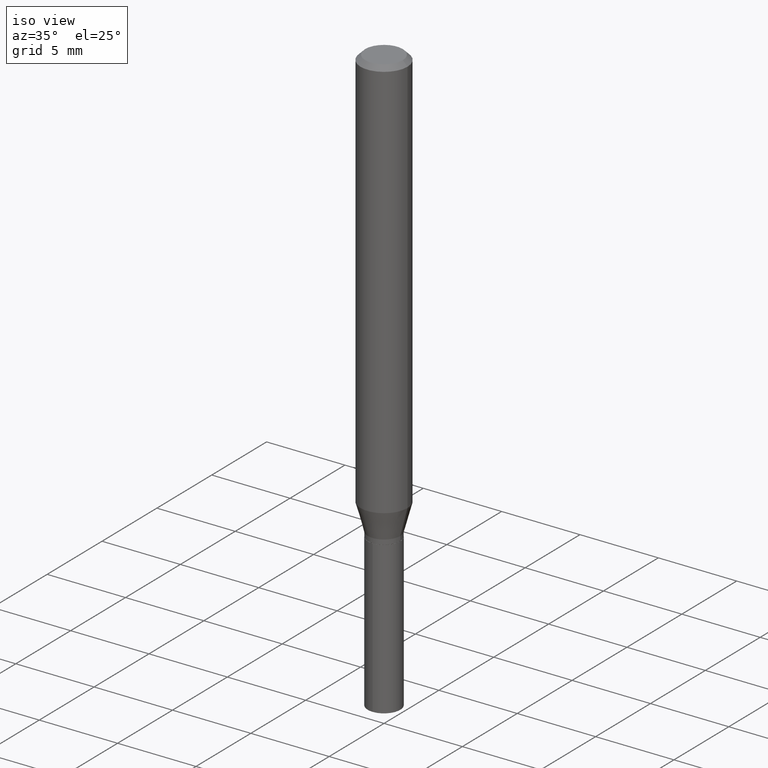
[diagram: clean part render]
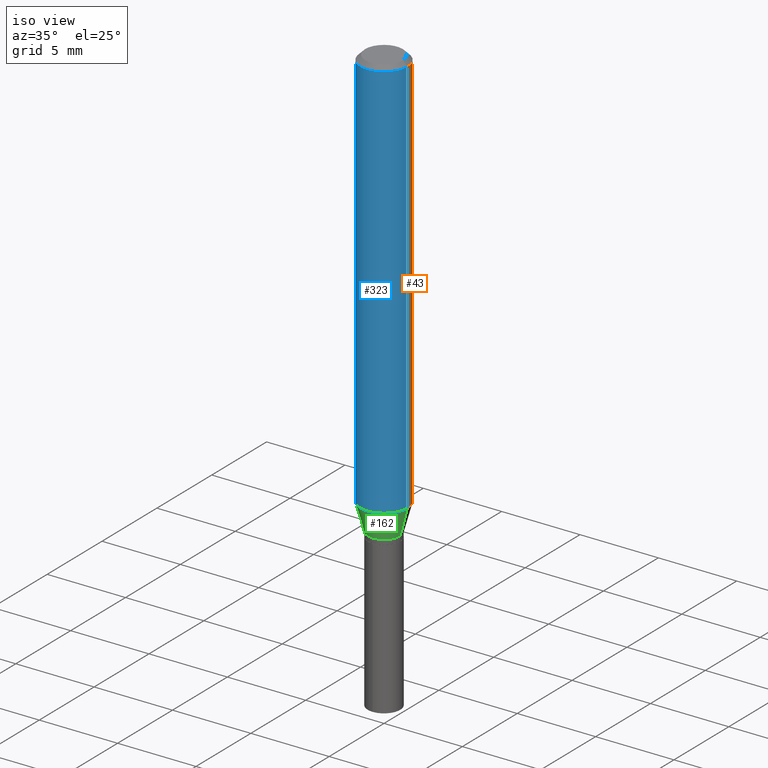
[diagram: same view with three faces highlighted in distinct colors, each labeled with its STEP entity id]
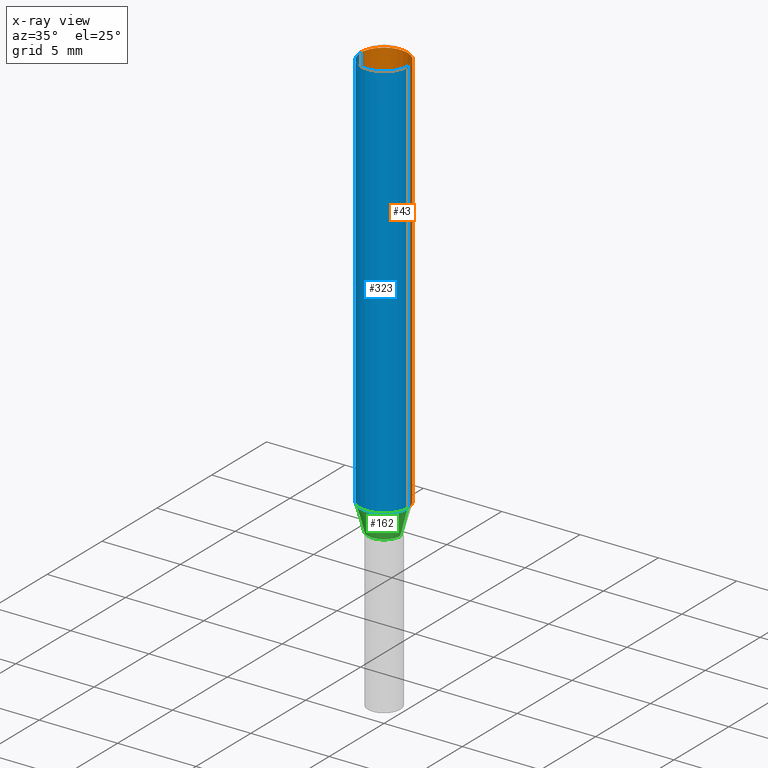
[diagram: x-ray of the same camera — body ghosted, the three highlighted faces saturated]
A machine part, iso view with three faces highlighted in distinct colors.
The next image is the same camera in x-ray (body ghosted, the three faces saturated) — at least one of them is partly hidden behind the body in this view.
Their STEP definitions:

[orange] entity #43 — the highlighted cylindrical surface (edge-blend (fillet) strip) has radius 1.4999 mm, axis along (-0, 0, 1).
#43 = ADVANCED_FACE ( 'NONE', ( #198 ), #132, .T. ) ;
#46 = ORIENTED_EDGE ( 'NONE', *, *, #384, .F. ) ;
#48 = DIRECTION ( 'NONE',  ( -2.445468806185136597E-29, 3.491481338843145583E-15, 1.000000000000000000 ) ) ;
#79 = CARTESIAN_POINT ( 'NONE',  ( -0.05905000000000006771, 4.195754854663396409E-16, -2.904631170795525045E-30 ) ) ;
#89 = EDGE_CURVE ( 'NONE', #223, #374, #464, .T. ) ;
#97 = LINE ( 'NONE', #324, #264 ) ;
#106 = EDGE_CURVE ( 'NONE', #187, #374, #484, .T. ) ;
#120 = CARTESIAN_POINT ( 'NONE',  ( 2.479713855790130856E-29, -3.540374193800521229E-15, -1.014003470221489289 ) ) ;
#132 = CYLINDRICAL_SURFACE ( 'NONE', #290, 0.05905000000000006771 ) ;
#133 = VERTEX_POINT ( 'NONE', #386 ) ;
#134 = CARTESIAN_POINT ( 'NONE',  ( -0.05905000000000011628, -3.120798708334180159E-15, -1.014003470221489289 ) ) ;
#160 = CARTESIAN_POINT ( 'NONE',  ( -0.05905000000000000526, -1.371228808739789197E-15, -0.01181000000000007738 ) ) ;
#163 = CARTESIAN_POINT ( 'NONE',  ( 0.05905000000000000526, -4.535783407291119586E-16, -0.01181000000000007738 ) ) ;
#172 = CARTESIAN_POINT ( 'NONE',  ( 2.888098660104665518E-31, -4.123439461173782112E-17, -0.01181000000000007738 ) ) ;
#182 = AXIS2_PLACEMENT_3D ( 'NONE', #120, #232, #465 ) ;
#187 = VERTEX_POINT ( 'NONE', #163 ) ;
#198 = FACE_OUTER_BOUND ( 'NONE', #418, .T. ) ;
#223 = VERTEX_POINT ( 'NONE', #134 ) ;
#228 = ORIENTED_EDGE ( 'NONE', *, *, #106, .F. ) ;
#232 = DIRECTION ( 'NONE',  ( -2.445468806185136597E-29, 3.491481338843145583E-15, 1.000000000000000000 ) ) ;
#254 = ORIENTED_EDGE ( 'NONE', *, *, #317, .T. ) ;
#264 = VECTOR ( 'NONE', #402, 39.37007874015748143 ) ;
#275 = DIRECTION ( 'NONE',  ( -2.445468806185136877E-29, 3.491481338843145188E-15, 1.000000000000000000 ) ) ;
#290 = AXIS2_PLACEMENT_3D ( 'NONE', #311, #422, #387 ) ;
#311 = CARTESIAN_POINT ( 'NONE',  ( 0.000000000000000000, 0.000000000000000000, 0.000000000000000000 ) ) ;
#317 = EDGE_CURVE ( 'NONE', #133, #223, #353, .T. ) ;
#318 = AXIS2_PLACEMENT_3D ( 'NONE', #172, #48, #392 ) ;
#324 = CARTESIAN_POINT ( 'NONE',  ( 0.05905000000000006771, -4.123439461173745257E-16, 2.879382386107503723E-30 ) ) ;
#353 = CIRCLE ( 'NONE', #182, 0.05905000000000013016 ) ;
#374 = VERTEX_POINT ( 'NONE', #160 ) ;
#384 = EDGE_CURVE ( 'NONE', #133, #187, #97, .T. ) ;
#386 = CARTESIAN_POINT ( 'NONE',  ( 0.05905000000000011628, -3.952718139917895755E-15, -1.014003470221489289 ) ) ;
#387 = DIRECTION ( 'NONE',  ( 1.000000000000000000, -6.982962677686266711E-15, 4.876176775795936353E-29 ) ) ;
#392 = DIRECTION ( 'NONE',  ( 1.000000000000000000, -6.982962677686267499E-15, 0.000000000000000000 ) ) ;
#402 = DIRECTION ( 'NONE',  ( -2.445468806185136877E-29, 3.491481338843145188E-15, 1.000000000000000000 ) ) ;
#403 = ORIENTED_EDGE ( 'NONE', *, *, #89, .T. ) ;
#410 = VECTOR ( 'NONE', #275, 39.37007874015748143 ) ;
#418 = EDGE_LOOP ( 'NONE', ( #254, #403, #228, #46 ) ) ;
#422 = DIRECTION ( 'NONE',  ( -2.445468806185136597E-29, 3.491481338843145583E-15, 1.000000000000000000 ) ) ;
#464 = LINE ( 'NONE', #79, #410 ) ;
#465 = DIRECTION ( 'NONE',  ( 1.000000000000000000, -6.982962677686265133E-15, 0.000000000000000000 ) ) ;
#484 = CIRCLE ( 'NONE', #318, 0.05905000000000000526 ) ;

[blue] entity #323 — the highlighted cylindrical surface (edge-blend (fillet) strip) has radius 1.4999 mm, axis along (-0, 0, 1).
#10 = FACE_OUTER_BOUND ( 'NONE', #69, .T. ) ;
#17 = DIRECTION ( 'NONE',  ( -2.445468806185136597E-29, 3.491481338843145583E-15, 1.000000000000000000 ) ) ;
#24 = DIRECTION ( 'NONE',  ( -2.445468806185136597E-29, 3.491481338843145583E-15, 1.000000000000000000 ) ) ;
#37 = CIRCLE ( 'NONE', #168, 0.05905000000000013016 ) ;
#69 = EDGE_LOOP ( 'NONE', ( #71, #152, #145, #227 ) ) ;
#71 = ORIENTED_EDGE ( 'NONE', *, *, #89, .F. ) ;
#79 = CARTESIAN_POINT ( 'NONE',  ( -0.05905000000000006771, 4.195754854663396409E-16, -2.904631170795525045E-30 ) ) ;
#82 = DIRECTION ( 'NONE',  ( 1.000000000000000000, -6.982962677686267499E-15, 0.000000000000000000 ) ) ;
#89 = EDGE_CURVE ( 'NONE', #223, #374, #464, .T. ) ;
#97 = LINE ( 'NONE', #324, #264 ) ;
#108 = CIRCLE ( 'NONE', #226, 0.05905000000000000526 ) ;
#123 = DIRECTION ( 'NONE',  ( -2.445468806185136597E-29, 3.491481338843145583E-15, 1.000000000000000000 ) ) ;
#133 = VERTEX_POINT ( 'NONE', #386 ) ;
#134 = CARTESIAN_POINT ( 'NONE',  ( -0.05905000000000011628, -3.120798708334180159E-15, -1.014003470221489289 ) ) ;
#145 = ORIENTED_EDGE ( 'NONE', *, *, #384, .T. ) ;
#152 = ORIENTED_EDGE ( 'NONE', *, *, #239, .T. ) ;
#156 = DIRECTION ( 'NONE',  ( 1.000000000000000000, -6.982962677686266711E-15, 4.876176775795936353E-29 ) ) ;
#160 = CARTESIAN_POINT ( 'NONE',  ( -0.05905000000000000526, -1.371228808739789197E-15, -0.01181000000000007738 ) ) ;
#163 = CARTESIAN_POINT ( 'NONE',  ( 0.05905000000000000526, -4.535783407291119586E-16, -0.01181000000000007738 ) ) ;
#168 = AXIS2_PLACEMENT_3D ( 'NONE', #212, #24, #409 ) ;
#169 = CARTESIAN_POINT ( 'NONE',  ( 2.888098660104665518E-31, -4.123439461173782112E-17, -0.01181000000000007738 ) ) ;
#187 = VERTEX_POINT ( 'NONE', #163 ) ;
#212 = CARTESIAN_POINT ( 'NONE',  ( 2.479713855790130856E-29, -3.540374193800521229E-15, -1.014003470221489289 ) ) ;
#223 = VERTEX_POINT ( 'NONE', #134 ) ;
#226 = AXIS2_PLACEMENT_3D ( 'NONE', #169, #123, #82 ) ;
#227 = ORIENTED_EDGE ( 'NONE', *, *, #332, .F. ) ;
#239 = EDGE_CURVE ( 'NONE', #223, #133, #37, .T. ) ;
#264 = VECTOR ( 'NONE', #402, 39.37007874015748143 ) ;
#275 = DIRECTION ( 'NONE',  ( -2.445468806185136877E-29, 3.491481338843145188E-15, 1.000000000000000000 ) ) ;
#323 = ADVANCED_FACE ( 'NONE', ( #10 ), #460, .T. ) ;
#324 = CARTESIAN_POINT ( 'NONE',  ( 0.05905000000000006771, -4.123439461173745257E-16, 2.879382386107503723E-30 ) ) ;
#332 = EDGE_CURVE ( 'NONE', #374, #187, #108, .T. ) ;
#374 = VERTEX_POINT ( 'NONE', #160 ) ;
#384 = EDGE_CURVE ( 'NONE', #133, #187, #97, .T. ) ;
#386 = CARTESIAN_POINT ( 'NONE',  ( 0.05905000000000011628, -3.952718139917895755E-15, -1.014003470221489289 ) ) ;
#402 = DIRECTION ( 'NONE',  ( -2.445468806185136877E-29, 3.491481338843145188E-15, 1.000000000000000000 ) ) ;
#405 = AXIS2_PLACEMENT_3D ( 'NONE', #470, #17, #156 ) ;
#409 = DIRECTION ( 'NONE',  ( 1.000000000000000000, -6.982962677686265133E-15, 0.000000000000000000 ) ) ;
#410 = VECTOR ( 'NONE', #275, 39.37007874015748143 ) ;
#460 = CYLINDRICAL_SURFACE ( 'NONE', #405, 0.05905000000000006771 ) ;
#464 = LINE ( 'NONE', #79, #410 ) ;
#470 = CARTESIAN_POINT ( 'NONE',  ( 0.000000000000000000, 0.000000000000000000, 0.000000000000000000 ) ) ;

[green] entity #162 — the highlighted conical surface has half-angle 15 deg.
#24 = DIRECTION ( 'NONE',  ( -2.445468806185136597E-29, 3.491481338843145583E-15, 1.000000000000000000 ) ) ;
#37 = CIRCLE ( 'NONE', #168, 0.05905000000000013016 ) ;
#52 = DIRECTION ( 'NONE',  ( -2.445468806185136597E-29, 3.491481338843145583E-15, 1.000000000000000000 ) ) ;
#61 = CARTESIAN_POINT ( 'NONE',  ( 0.04075000000000000150, -4.063385982145651845E-15, -1.082300000000000040 ) ) ;
#92 = CARTESIAN_POINT ( 'NONE',  ( 0.04075000000000000150, -4.063385982145651845E-15, -1.082300000000000040 ) ) ;
#124 = CARTESIAN_POINT ( 'NONE',  ( 2.646730888934173156E-29, -3.778830253029936509E-15, -1.082300000000000040 ) ) ;
#130 = VERTEX_POINT ( 'NONE', #240 ) ;
#133 = VERTEX_POINT ( 'NONE', #386 ) ;
#134 = CARTESIAN_POINT ( 'NONE',  ( -0.05905000000000011628, -3.120798708334180159E-15, -1.014003470221489289 ) ) ;
#162 = ADVANCED_FACE ( 'NONE', ( #276 ), #263, .T. ) ;
#164 = ORIENTED_EDGE ( 'NONE', *, *, #239, .F. ) ;
#168 = AXIS2_PLACEMENT_3D ( 'NONE', #212, #24, #409 ) ;
#184 = ORIENTED_EDGE ( 'NONE', *, *, #193, .T. ) ;
#193 = EDGE_CURVE ( 'NONE', #130, #475, #334, .T. ) ;
#206 = DIRECTION ( 'NONE',  ( 1.000000000000000000, -6.982962677686266711E-15, 0.000000000000000000 ) ) ;
#207 = EDGE_CURVE ( 'NONE', #475, #133, #483, .T. ) ;
#212 = CARTESIAN_POINT ( 'NONE',  ( 2.479713855790130856E-29, -3.540374193800521229E-15, -1.014003470221489289 ) ) ;
#223 = VERTEX_POINT ( 'NONE', #134 ) ;
#231 = ORIENTED_EDGE ( 'NONE', *, *, #289, .F. ) ;
#239 = EDGE_CURVE ( 'NONE', #223, #133, #37, .T. ) ;
#240 = CARTESIAN_POINT ( 'NONE',  ( -0.04075000000000000150, -3.509709254039927609E-15, -1.082300000000000040 ) ) ;
#263 = CONICAL_SURFACE ( 'NONE', #371, 0.04075000000000000150, 0.2617993877991500740 ) ;
#276 = FACE_OUTER_BOUND ( 'NONE', #341, .T. ) ;
#278 = DIRECTION ( 'NONE',  ( -0.2588190451025213501, 5.211531920934551042E-15, 0.9659258262890682012 ) ) ;
#285 = DIRECTION ( 'NONE',  ( 0.2588190451025213501, 1.565188264969621968E-15, 0.9659258262890682012 ) ) ;
#289 = EDGE_CURVE ( 'NONE', #130, #223, #335, .T. ) ;
#313 = CARTESIAN_POINT ( 'NONE',  ( 2.646730888934173156E-29, -3.778830253029936509E-15, -1.082300000000000040 ) ) ;
#322 = ORIENTED_EDGE ( 'NONE', *, *, #207, .T. ) ;
#334 = CIRCLE ( 'NONE', #380, 0.04075000000000000150 ) ;
#335 = LINE ( 'NONE', #487, #451 ) ;
#341 = EDGE_LOOP ( 'NONE', ( #231, #184, #322, #164 ) ) ;
#371 = AXIS2_PLACEMENT_3D ( 'NONE', #124, #52, #206 ) ;
#380 = AXIS2_PLACEMENT_3D ( 'NONE', #313, #466, #425 ) ;
#386 = CARTESIAN_POINT ( 'NONE',  ( 0.05905000000000011628, -3.952718139917895755E-15, -1.014003470221489289 ) ) ;
#409 = DIRECTION ( 'NONE',  ( 1.000000000000000000, -6.982962677686265133E-15, 0.000000000000000000 ) ) ;
#425 = DIRECTION ( 'NONE',  ( 1.000000000000000000, -6.982962677686266711E-15, 0.000000000000000000 ) ) ;
#426 = VECTOR ( 'NONE', #285, 39.37007874015747433 ) ;
#451 = VECTOR ( 'NONE', #278, 39.37007874015747433 ) ;
#466 = DIRECTION ( 'NONE',  ( -2.445468806185136597E-29, 3.491481338843145583E-15, 1.000000000000000000 ) ) ;
#475 = VERTEX_POINT ( 'NONE', #92 ) ;
#483 = LINE ( 'NONE', #61, #426 ) ;
#487 = CARTESIAN_POINT ( 'NONE',  ( -0.04075000000000000150, -3.489284088207695228E-15, -1.082300000000000040 ) ) ;